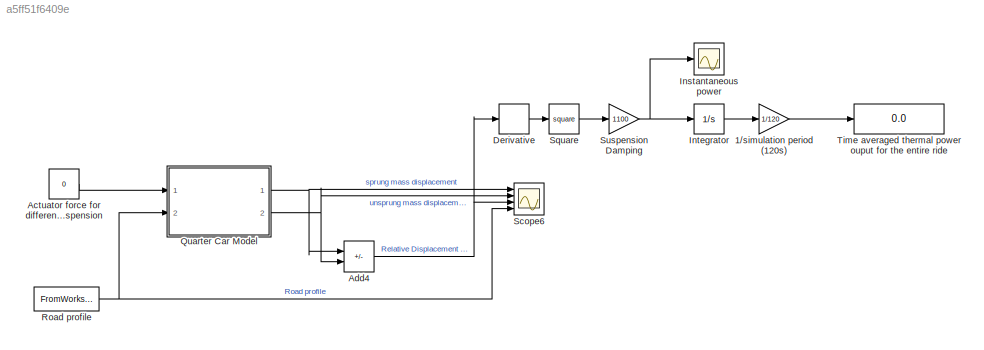
MODEL slx_a5ff51f6409e
KIND model
CONFIG AbsTol = auto
CONFIG EnableMultiTasking = off
CONFIG FixedStep = auto
CONFIG MaxStep = auto
CONFIG MinStep = auto
CONFIG RelTol = 1e-3
CONFIG SampleTimeConstraint = Unconstrained
CONFIG Solver = VariableStepAuto
CONFIG SolverName = VariableStepAuto
CONFIG StartTime = 0.0
CONFIG StopTime = 10.0
BLOCK [Gain] 1//simulation period (120s)
  Gain = 1/120
BLOCK [Constant] Actuator force for different types of suspension 
  Value = 0
BLOCK [Sum] Add4
  IconShape = rectangular
  Inputs = +-
  Ports = [2, 1]
BLOCK [Derivative] Derivative
BLOCK [Scope] Instantaneous power 
  Floating = off
  NumInputPorts = 1
  Ports = [1]
  ScopeSpecificationString = Simulink.scopes.TimeScopeBlockCfg('CurrentConfiguration', extmgr.ConfigurationSet(extmgr.Configuration('Core','General UI',true),extmgr.Configuration('Core','Source UI',true),extmgr.Configuration('Sources','WiredSimulink',true,'DataLoggingVariableName','ScopeData1'),extmgr.Configuration('Visuals','Time Domain',true,'SerializedDisplays',{struct('MinYLimReal','-95.27508','MaxYLimReal','857.47574','Y...<+1400ch>
BLOCK [Integrator] Integrator
  Ports = [1, 1]
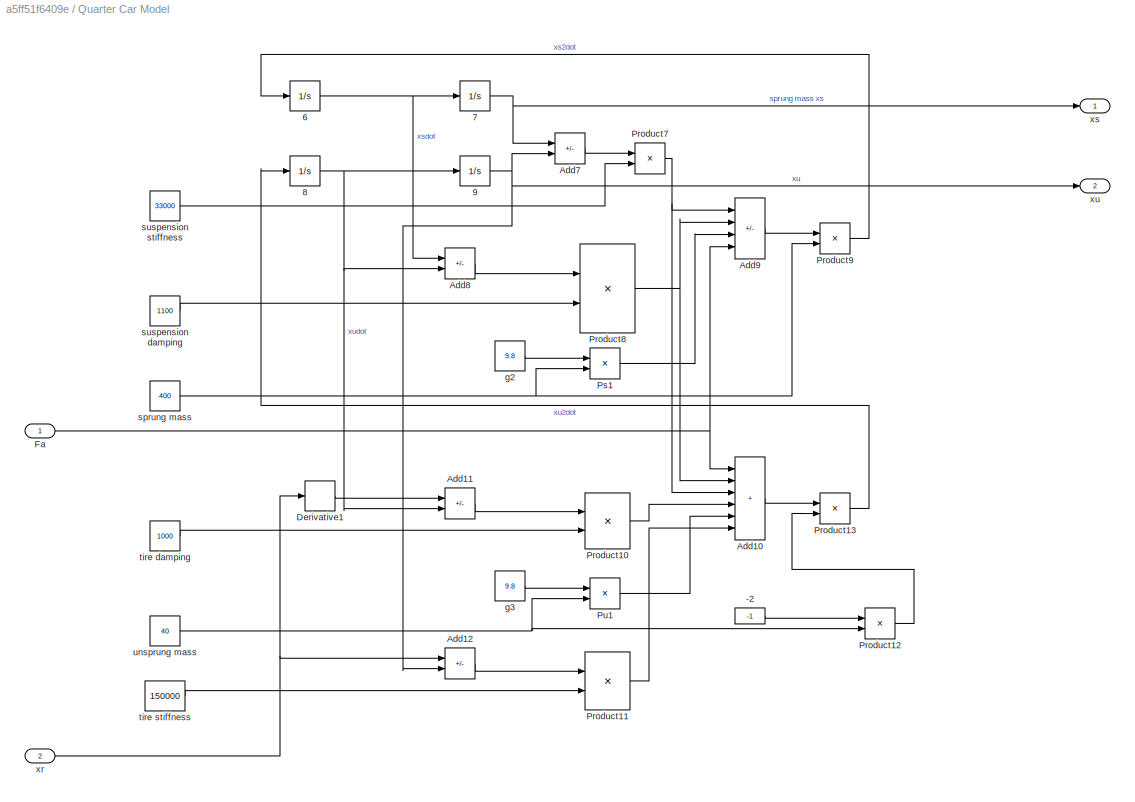
BLOCK [SubSystem] Quarter Car Model
  Ports = [2, 2]
  RequestExecContextInheritance = off
BLOCK [Constant] Quarter Car Model/-2
  NameLocation = top
  Value = -1
BLOCK [Integrator] Quarter Car Model/6
  Ports = [1, 1]
BLOCK [Integrator] Quarter Car Model/7
  Ports = [1, 1]
BLOCK [Integrator] Quarter Car Model/8
  Ports = [1, 1]
BLOCK [Integrator] Quarter Car Model/9
  Ports = [1, 1]
BLOCK [Sum] Quarter Car Model/Add10
  IconShape = rectangular
  Inputs = ++++++
  Ports = [6, 1]
BLOCK [Sum] Quarter Car Model/Add11
  IconShape = rectangular
  Inputs = -+
  Ports = [2, 1]
BLOCK [Sum] Quarter Car Model/Add12
  IconShape = rectangular
  Inputs = -+
  Ports = [2, 1]
BLOCK [Sum] Quarter Car Model/Add7
  IconShape = rectangular
  Inputs = -+
  Ports = [2, 1]
BLOCK [Sum] Quarter Car Model/Add8
  IconShape = rectangular
  Inputs = -+
  Ports = [2, 1]
BLOCK [Sum] Quarter Car Model/Add9
  IconShape = rectangular
  Inputs = ++-+
  Ports = [4, 1]
BLOCK [Derivative] Quarter Car Model/Derivative1
BLOCK [Inport] Quarter Car Model/Fa
BLOCK [Product] Quarter Car Model/Product10
  Ports = [2, 1]
BLOCK [Product] Quarter Car Model/Product11
  Ports = [2, 1]
BLOCK [Product] Quarter Car Model/Product12
  Ports = [2, 1]
BLOCK [Product] Quarter Car Model/Product13
  Inputs = */
  Ports = [2, 1]
BLOCK [Product] Quarter Car Model/Product7
  Ports = [2, 1]
BLOCK [Product] Quarter Car Model/Product8
  Ports = [2, 1]
BLOCK [Product] Quarter Car Model/Product9
  Inputs = */
  Ports = [2, 1]
BLOCK [Product] Quarter Car Model/Ps1
  Ports = [2, 1]
BLOCK [Product] Quarter Car Model/Pu1
  Ports = [2, 1]
BLOCK [Constant] Quarter Car Model/g2
  Value = 9.8
BLOCK [Constant] Quarter Car Model/g3
  Value = 9.8
BLOCK [Constant] Quarter Car Model/sprung mass
  Value = 400
BLOCK [Constant] Quarter Car Model/suspension damping
  Value = 1100
BLOCK [Constant] Quarter Car Model/suspension stiffness
  Value = 33000
BLOCK [Constant] Quarter Car Model/tire damping 
  Value = 1000
BLOCK [Constant] Quarter Car Model/tire stiffness
  Value = 150000
BLOCK [Constant] Quarter Car Model/unsprung mass
  Value = 40
BLOCK [Inport] Quarter Car Model/xr
  Port = 2
BLOCK [Outport] Quarter Car Model/xs
BLOCK [Outport] Quarter Car Model/xu
  Port = 2
BLOCK [FromWorkspace] Road profile 
  VariableName = R
BLOCK [Scope] Scope6
  Floating = off
  NumInputPorts = 4
  Ports = [4]
  ScopeSpecificationString = Simulink.scopes.TimeScopeBlockCfg('CurrentConfiguration', extmgr.ConfigurationSet(extmgr.Configuration('Core','General UI',true),extmgr.Configuration('Core','Source UI',true),extmgr.Configuration('Sources','WiredSimulink',true,'DataLoggingSaveFormat','StructureWithTime','DataLoggingDecimation','1','DataLoggingDecimateData',true),extmgr.Configuration('Visuals','Time Domain',true,'SerializedDisplays...<+3735ch>
BLOCK [Math] Square
  Operator = square
  Ports = [1, 1]
BLOCK [Gain] Suspension Damping
  Gain = 1100
BLOCK [Display] Time averaged thermal power ouput for the entire ride 
  Decimation = 1
  Ports = [1]
LINE 1//simulation period (120s):1 -> Time averaged thermal power ouput for the entire ride :1
LINE Actuator force for different types of suspension :1 -> Quarter Car Model:1
NET Add4:1 -> Derivative:1, Scope6:3
LINE Derivative:1 -> Square:1
LINE Integrator:1 -> 1//simulation period (120s):1
LINE Quarter Car Model/-2:1 -> Quarter Car Model/Product12:1
NET Quarter Car Model/6:1 -> Quarter Car Model/7:1, Quarter Car Model/Add8:1
NET Quarter Car Model/7:1 -> Quarter Car Model/Add7:1, Quarter Car Model/xs:1
NET Quarter Car Model/8:1 -> Quarter Car Model/9:1, Quarter Car Model/Add11:2, Quarter Car Model/Add8:2
NET Quarter Car Model/9:1 -> Quarter Car Model/Add12:2, Quarter Car Model/Add7:2, Quarter Car Model/xu:1
LINE Quarter Car Model/Add10:1 -> Quarter Car Model/Product13:1
LINE Quarter Car Model/Add11:1 -> Quarter Car Model/Product10:1
LINE Quarter Car Model/Add12:1 -> Quarter Car Model/Product11:1
LINE Quarter Car Model/Add7:1 -> Quarter Car Model/Product7:1
LINE Quarter Car Model/Add8:1 -> Quarter Car Model/Product8:1
LINE Quarter Car Model/Add9:1 -> Quarter Car Model/Product9:1
LINE Quarter Car Model/Derivative1:1 -> Quarter Car Model/Add11:1
NET Quarter Car Model/Fa:1 -> Quarter Car Model/Add10:1, Quarter Car Model/Add9:4
LINE Quarter Car Model/Product10:1 -> Quarter Car Model/Add10:4
LINE Quarter Car Model/Product11:1 -> Quarter Car Model/Add10:6
LINE Quarter Car Model/Product12:1 -> Quarter Car Model/Product13:2
LINE Quarter Car Model/Product13:1 -> Quarter Car Model/8:1
NET Quarter Car Model/Product7:1 -> Quarter Car Model/Add10:3, Quarter Car Model/Add9:1
NET Quarter Car Model/Product8:1 -> Quarter Car Model/Add10:2, Quarter Car Model/Add9:2
LINE Quarter Car Model/Product9:1 -> Quarter Car Model/6:1
LINE Quarter Car Model/Ps1:1 -> Quarter Car Model/Add9:3
LINE Quarter Car Model/Pu1:1 -> Quarter Car Model/Add10:5
LINE Quarter Car Model/g2:1 -> Quarter Car Model/Ps1:1
LINE Quarter Car Model/g3:1 -> Quarter Car Model/Pu1:1
NET Quarter Car Model/sprung mass:1 -> Quarter Car Model/Product9:2, Quarter Car Model/Ps1:2
LINE Quarter Car Model/suspension damping:1 -> Quarter Car Model/Product8:2
LINE Quarter Car Model/suspension stiffness:1 -> Quarter Car Model/Product7:2
LINE Quarter Car Model/tire damping :1 -> Quarter Car Model/Product10:2
LINE Quarter Car Model/tire stiffness:1 -> Quarter Car Model/Product11:2
NET Quarter Car Model/unsprung mass:1 -> Quarter Car Model/Product12:2, Quarter Car Model/Pu1:2
NET Quarter Car Model/xr:1 -> Quarter Car Model/Add12:1, Quarter Car Model/Derivative1:1
NET Quarter Car Model:1 -> Add4:1, Scope6:1
NET Quarter Car Model:2 -> Add4:2, Scope6:2
NET Road profile :1 -> Quarter Car Model:2, Scope6:4
LINE Square:1 -> Suspension Damping:1
NET Suspension Damping:1 -> Instantaneous power :1, Integrator:1
note: NET lines group one-source signal fan-out (src -> all destinations, sorted); 1:1 wires keep LINE
